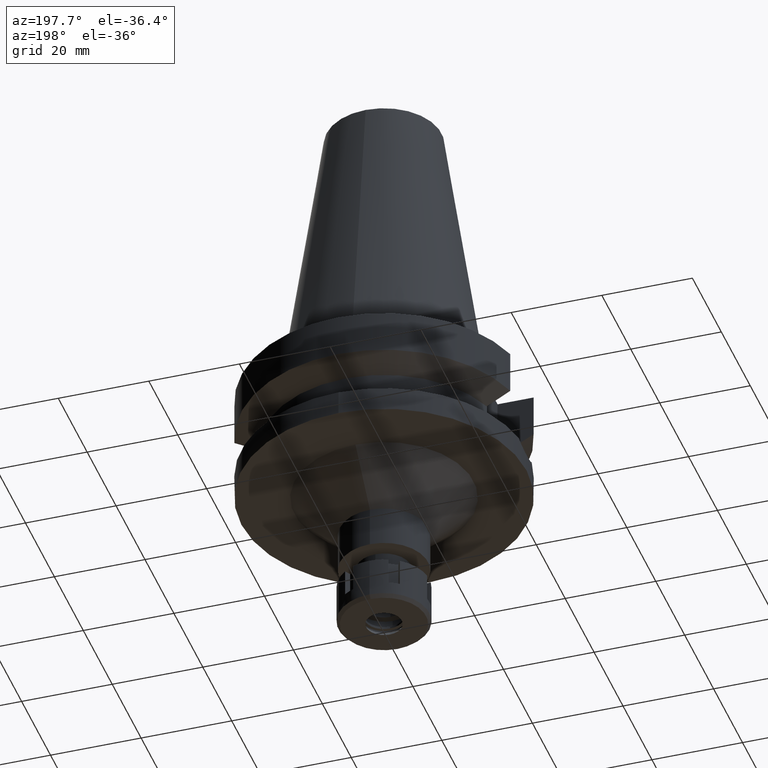
[diagram: clean part render]
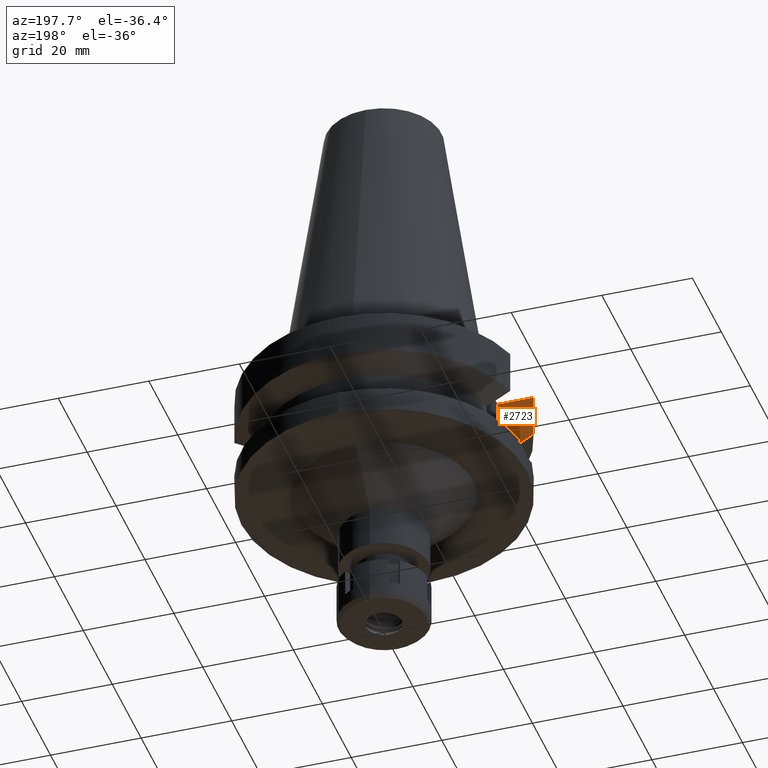
[diagram: same view with one face highlighted and labeled with its STEP entity id]
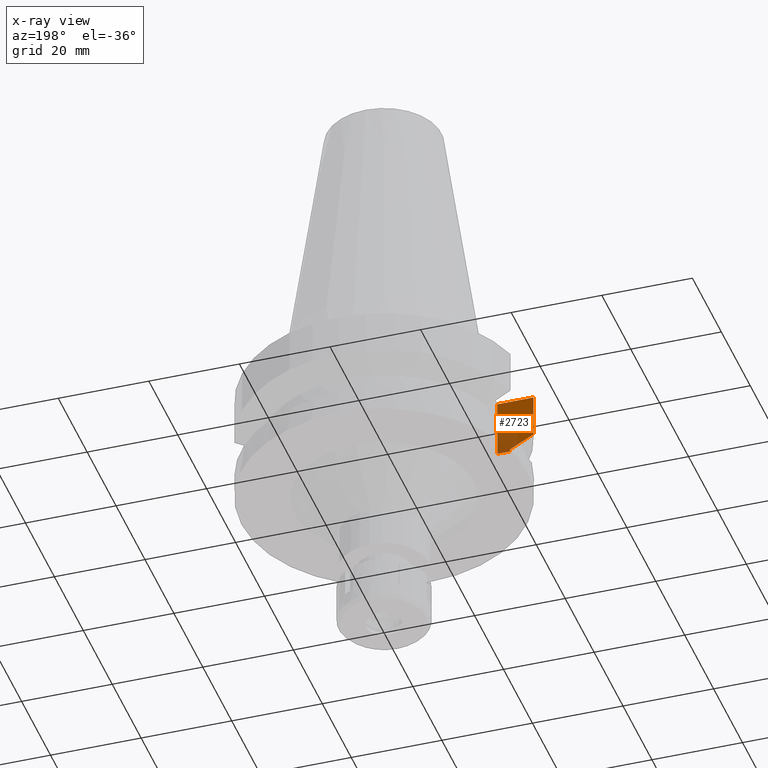
[diagram: x-ray of the same camera — body ghosted, the highlighted face saturated]
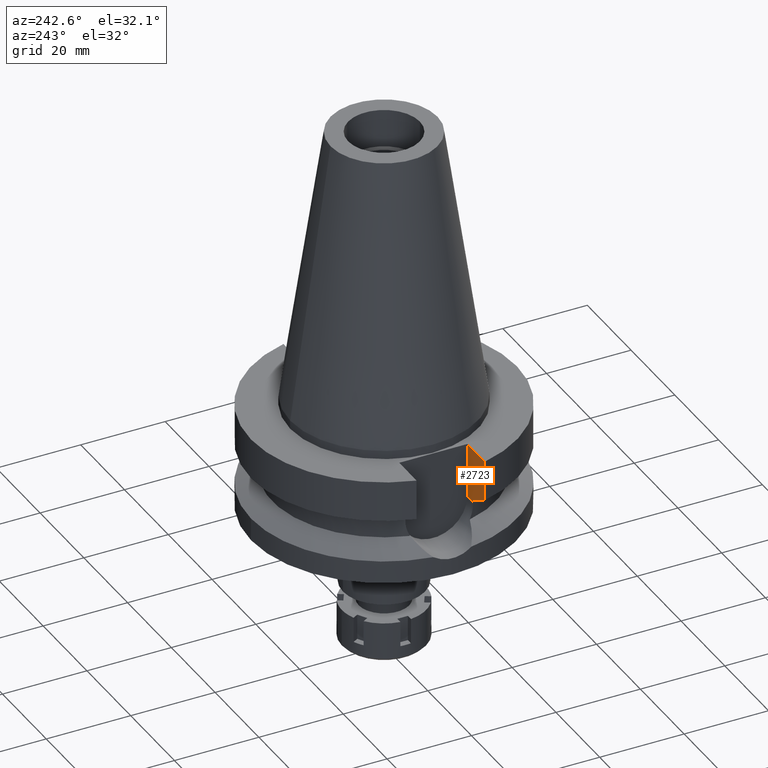
[diagram: same view with one face highlighted and labeled with its STEP entity id]
A machine part, auxiliary view. The second image highlights one B-rep face of the part: STEP entity #2723.
The next image is the same camera in x-ray: the body ghosted, the highlighted face saturated — about 29% of this face is hidden behind the body in this view.
A second angle (auxiliary view) of the same face is appended — the face is thin or edge-on in the first view.
In plain terms, the highlighted planar face has unit normal (0, -1, 0).
Its self-contained STEP definition (entity closure, byte-faithful):
#11 = B_SPLINE_CURVE_WITH_KNOTS ( 'NONE', 3,
 ( #1598, #2702, #1079, #3194 ),
 .UNSPECIFIED., .F., .F.,
 ( 4, 4 ),
 ( 0.0000000000000000000, 1.000000000000000000 ),
 .UNSPECIFIED. ) ;
#128 = DIRECTION ( 'NONE',  ( 0.0000000000000000000, -1.000000000000000000, 0.0000000000000000000 ) ) ;
#169 = CARTESIAN_POINT ( 'NONE',  ( -30.45402272279000044, -8.050000000000000711, -2.000000000000000000 ) ) ;
#278 = VECTOR ( 'NONE', #1618, 1000.000000000000000 ) ;
#358 = ORIENTED_EDGE ( 'NONE', *, *, #602, .F. ) ;
#364 = EDGE_LOOP ( 'NONE', ( #2597, #818, #358, #3140, #1329, #3358 ) ) ;
#369 = CARTESIAN_POINT ( 'NONE',  ( -30.45402291833999797, -8.049999260217997943, -11.56551231572000127 ) ) ;
#398 = FACE_OUTER_BOUND ( 'NONE', #364, .T. ) ;
#429 = LINE ( 'NONE', #2071, #1103 ) ;
#537 = LINE ( 'NONE', #3563, #278 ) ;
#576 = LINE ( 'NONE', #3294, #1151 ) ;
#602 = EDGE_CURVE ( 'NONE', #1279, #2345, #537, .T. ) ;
#693 = EDGE_CURVE ( 'NONE', #1143, #2917, #961, .T. ) ;
#818 = ORIENTED_EDGE ( 'NONE', *, *, #2936, .T. ) ;
#961 = LINE ( 'NONE', #2591, #2752 ) ;
#1025 = DIRECTION ( 'NONE',  ( -2.967493825939956601E-06, 9.307144001593875188E-06, 0.9999999999522856120 ) ) ;
#1079 = CARTESIAN_POINT ( 'NONE',  ( -26.83754562963891033, -8.049990725264642322, -13.57774918916766005 ) ) ;
#1103 = VECTOR ( 'NONE', #1200, 1000.000000000000114 ) ;
#1143 = VERTEX_POINT ( 'NONE', #3368 ) ;
#1151 = VECTOR ( 'NONE', #2492, 1000.000000000000000 ) ;
#1200 = DIRECTION ( 'NONE',  ( 2.044301243487988748E-08, -7.733839338450955782E-08, 0.9999999999999967804 ) ) ;
#1260 = LINE ( 'NONE', #2367, #2754 ) ;
#1279 = VERTEX_POINT ( 'NONE', #2041 ) ;
#1329 = ORIENTED_EDGE ( 'NONE', *, *, #693, .T. ) ;
#1468 = EDGE_CURVE ( 'NONE', #2917, #1658, #1260, .T. ) ;
#1496 = DIRECTION ( 'NONE',  ( 0.0000000000000000000, 0.0000000000000000000, -1.000000000000000000 ) ) ;
#1570 = PLANE ( 'NONE',  #2949 ) ;
#1598 = CARTESIAN_POINT ( 'NONE',  ( -30.45402291833999797, -8.049999260217997943, -11.56551231572000127 ) ) ;
#1618 = DIRECTION ( 'NONE',  ( -1.000000000000000000, 3.550916904668000126E-14, 0.0000000000000000000 ) ) ;
#1658 = VERTEX_POINT ( 'NONE', #2743 ) ;
#1732 = EDGE_CURVE ( 'NONE', #1279, #1143, #576, .T. ) ;
#1991 = EDGE_CURVE ( 'NONE', #2911, #1658, #11, .T. ) ;
#2041 = CARTESIAN_POINT ( 'NONE',  ( -22.50000000000000000, -8.050000000000000711, -2.000000000000000000 ) ) ;
#2071 = CARTESIAN_POINT ( 'NONE',  ( -30.45402291833999797, -8.049999260217997943, -11.56551231572000127 ) ) ;
#2109 = CARTESIAN_POINT ( 'NONE',  ( -22.50000000000000000, -8.050000000000000711, -14.94999999999999929 ) ) ;
#2345 = VERTEX_POINT ( 'NONE', #169 ) ;
#2367 = CARTESIAN_POINT ( 'NONE',  ( -25.24772266958000344, -8.050000000000000711, -14.94999999999999929 ) ) ;
#2492 = DIRECTION ( 'NONE',  ( 0.0000000000000000000, 0.0000000000000000000, -1.000000000000000000 ) ) ;
#2591 = CARTESIAN_POINT ( 'NONE',  ( -22.50000000000000000, -8.050000000000000711, -14.94999999999999929 ) ) ;
#2597 = ORIENTED_EDGE ( 'NONE', *, *, #1991, .F. ) ;
#2702 = CARTESIAN_POINT ( 'NONE',  ( -28.57292277919698975, -8.049998521402912388, -12.61549634607490233 ) ) ;
#2723 = ADVANCED_FACE ( 'NONE', ( #398 ), #1570, .F. ) ;
#2743 = CARTESIAN_POINT ( 'NONE',  ( -25.24772414651999952, -8.049995367763999710, -14.45229239496999973 ) ) ;
#2752 = VECTOR ( 'NONE', #3135, 1000.000000000000000 ) ;
#2754 = VECTOR ( 'NONE', #1025, 999.9999999999998863 ) ;
#2911 = VERTEX_POINT ( 'NONE', #369 ) ;
#2917 = VERTEX_POINT ( 'NONE', #3435 ) ;
#2936 = EDGE_CURVE ( 'NONE', #2911, #2345, #429, .T. ) ;
#2949 = AXIS2_PLACEMENT_3D ( 'NONE', #2109, #128, #1496 ) ;
#3135 = DIRECTION ( 'NONE',  ( -1.000000000000000000, 1.616208268639000174E-14, -1.357614945656000126E-14 ) ) ;
#3140 = ORIENTED_EDGE ( 'NONE', *, *, #1732, .T. ) ;
#3194 = CARTESIAN_POINT ( 'NONE',  ( -25.24772414651999952, -8.049995367763999710, -14.45229239496999973 ) ) ;
#3294 = CARTESIAN_POINT ( 'NONE',  ( -22.50000000000000000, -8.050000000000000711, -2.000000000000000000 ) ) ;
#3358 = ORIENTED_EDGE ( 'NONE', *, *, #1468, .T. ) ;
#3368 = CARTESIAN_POINT ( 'NONE',  ( -22.50000000000000000, -8.050000000000000711, -14.94999999999999929 ) ) ;
#3435 = CARTESIAN_POINT ( 'NONE',  ( -25.24772266958000344, -8.050000000000000711, -14.94999999999999929 ) ) ;
#3563 = CARTESIAN_POINT ( 'NONE',  ( -22.50000000000000000, -8.050000000000000711, -2.000000000000000000 ) ) ;